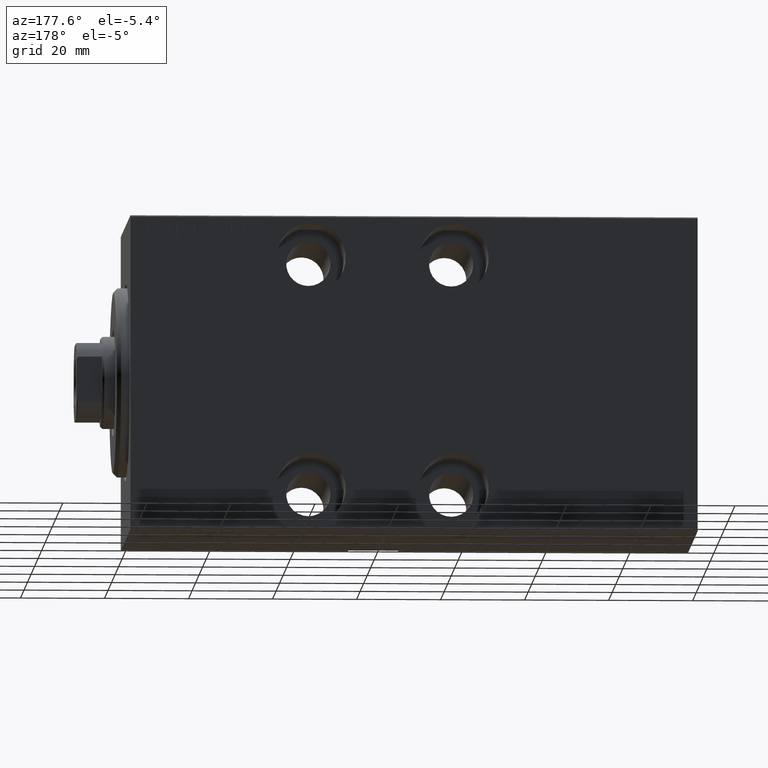
[diagram: clean part render]
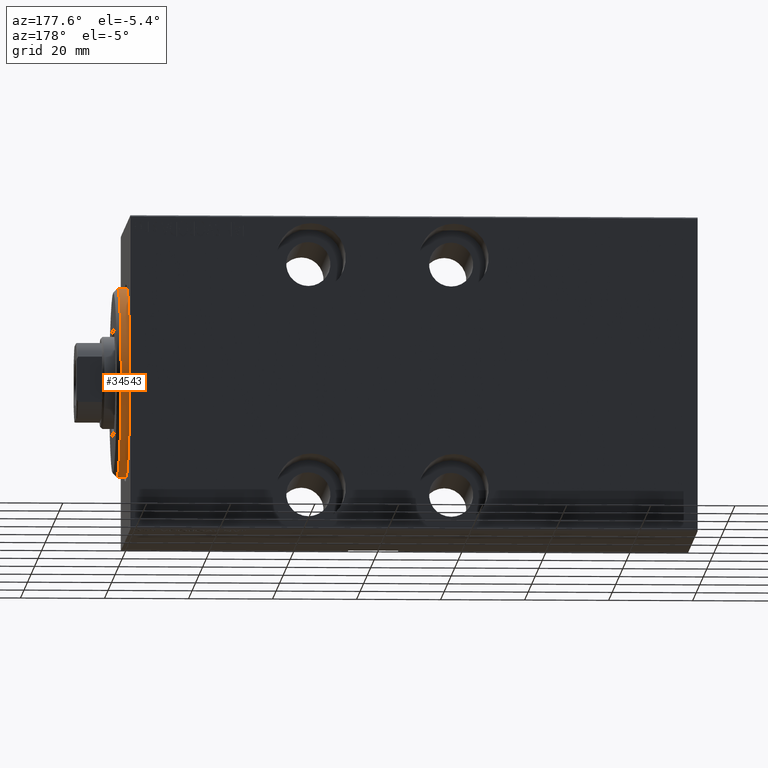
[diagram: same view with one face highlighted and labeled with its STEP entity id]
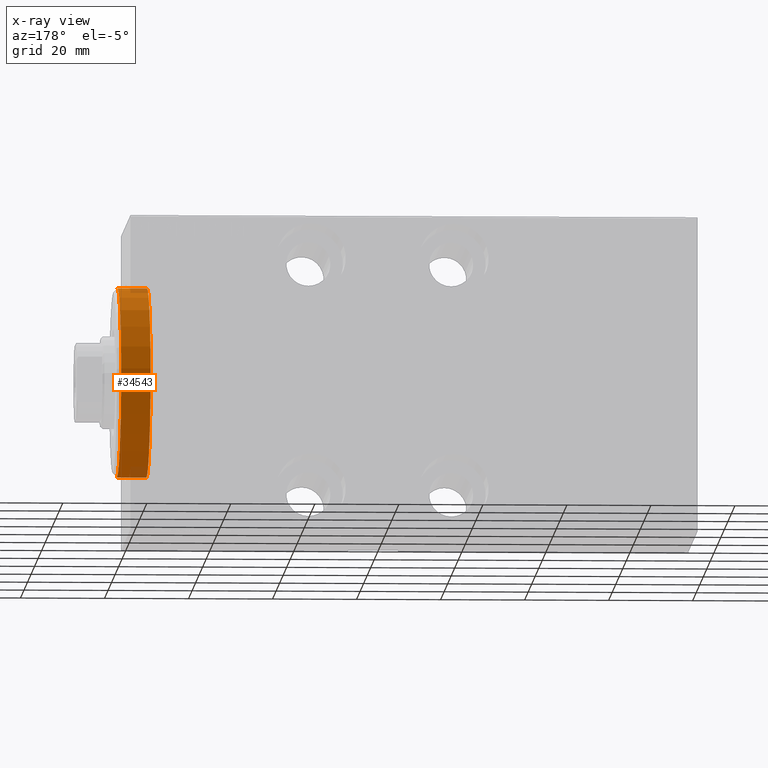
[diagram: x-ray of the same camera — body ghosted, the highlighted face saturated]
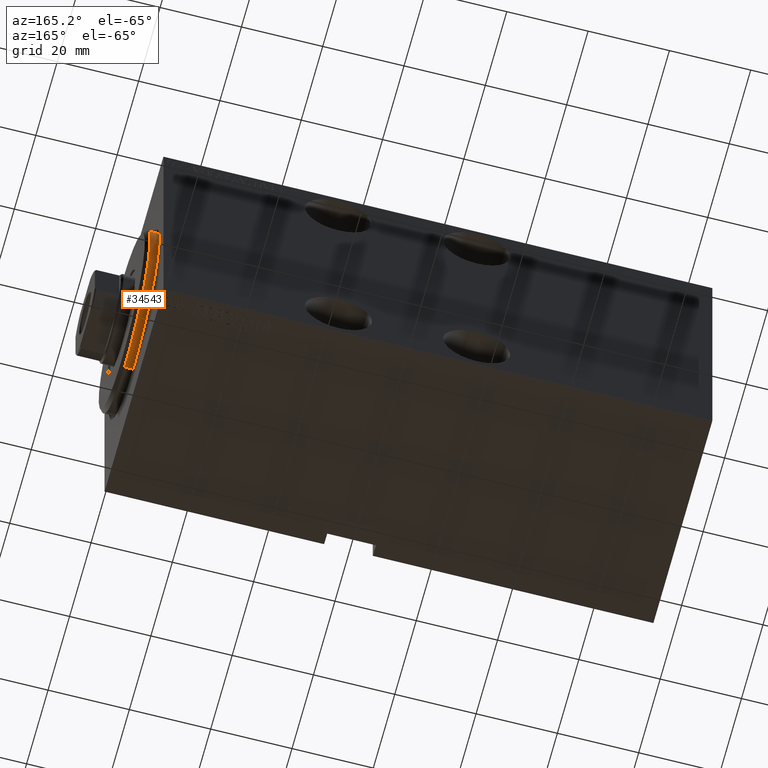
[diagram: same view with one face highlighted and labeled with its STEP entity id]
A machine part, auxiliary view. The second image highlights one B-rep face of the part: STEP entity #34543.
The next image is the same camera in x-ray: the body ghosted, the highlighted face saturated — about 5% of this face is hidden behind the body in this view.
A second angle (auxiliary view) of the same face is appended — the face is thin or edge-on in the first view.
In plain terms, the highlighted cylindrical surface (partial cylindrical patch) has radius 22.5 mm, axis along (-1, 0, 0).
Its self-contained STEP definition (entity closure, byte-faithful):
#526 = VECTOR ( 'NONE', #31885, 1000.000000000000000 ) ;
#2119 = CIRCLE ( 'NONE', #12021, 22.50000000000000355 ) ;
#2736 = DIRECTION ( 'NONE',  ( -1.000000000000000000, 0.000000000000000000, 0.000000000000000000 ) ) ;
#3776 = DIRECTION ( 'NONE',  ( 0.000000000000000000, 0.000000000000000000, 1.000000000000000000 ) ) ;
#4282 = CIRCLE ( 'NONE', #29016, 22.50000000000000355 ) ;
#4473 = EDGE_CURVE ( 'NONE', #32117, #21829, #27740, .T. ) ;
#4659 = FACE_OUTER_BOUND ( 'NONE', #30830, .T. ) ;
#5070 = VERTEX_POINT ( 'NONE', #17841 ) ;
#5300 = CARTESIAN_POINT ( 'NONE',  ( -5.000000000000000000, 0.000000000000000000, 22.50000000000000355 ) ) ;
#6946 = CARTESIAN_POINT ( 'NONE',  ( 3.000000000000000000, 2.755455298081545172E-15, -22.50000000000000355 ) ) ;
#7316 = CYLINDRICAL_SURFACE ( 'NONE', #42852, 22.50000000000000355 ) ;
#8061 = LINE ( 'NONE', #32403, #31512 ) ;
#9034 = DIRECTION ( 'NONE',  ( -1.000000000000000000, 0.000000000000000000, 0.000000000000000000 ) ) ;
#11880 = ORIENTED_EDGE ( 'NONE', *, *, #38989, .F. ) ;
#12021 = AXIS2_PLACEMENT_3D ( 'NONE', #40613, #9034, #26897 ) ;
#13368 = CARTESIAN_POINT ( 'NONE',  ( -5.000000000000000000, 0.000000000000000000, 0.000000000000000000 ) ) ;
#14234 = ORIENTED_EDGE ( 'NONE', *, *, #4473, .T. ) ;
#15102 = CARTESIAN_POINT ( 'NONE',  ( 1.999999999999999112, 2.755455298081545172E-15, -22.50000000000000355 ) ) ;
#15315 = EDGE_CURVE ( 'NONE', #5070, #32117, #2119, .T. ) ;
#16507 = VERTEX_POINT ( 'NONE', #5300 ) ;
#16918 = EDGE_CURVE ( 'NONE', #16507, #21829, #4282, .T. ) ;
#17841 = CARTESIAN_POINT ( 'NONE',  ( 1.999999999999999112, 0.000000000000000000, 22.50000000000000355 ) ) ;
#21829 = VERTEX_POINT ( 'NONE', #36915 ) ;
#22671 = ORIENTED_EDGE ( 'NONE', *, *, #15315, .T. ) ;
#23547 = DIRECTION ( 'NONE',  ( 0.000000000000000000, 0.000000000000000000, 1.000000000000000000 ) ) ;
#24587 = CARTESIAN_POINT ( 'NONE',  ( 3.000000000000000000, 0.000000000000000000, 0.000000000000000000 ) ) ;
#26897 = DIRECTION ( 'NONE',  ( 0.000000000000000000, 0.000000000000000000, -1.000000000000000000 ) ) ;
#27268 = ORIENTED_EDGE ( 'NONE', *, *, #16918, .F. ) ;
#27683 = DIRECTION ( 'NONE',  ( -1.000000000000000000, -0.000000000000000000, -0.000000000000000000 ) ) ;
#27740 = LINE ( 'NONE', #6946, #526 ) ;
#28207 = DIRECTION ( 'NONE',  ( -1.000000000000000000, -0.000000000000000000, -0.000000000000000000 ) ) ;
#29016 = AXIS2_PLACEMENT_3D ( 'NONE', #13368, #2736, #23547 ) ;
#30830 = EDGE_LOOP ( 'NONE', ( #22671, #14234, #27268, #11880 ) ) ;
#31512 = VECTOR ( 'NONE', #28207, 1000.000000000000000 ) ;
#31885 = DIRECTION ( 'NONE',  ( -1.000000000000000000, -0.000000000000000000, -0.000000000000000000 ) ) ;
#32117 = VERTEX_POINT ( 'NONE', #15102 ) ;
#32403 = CARTESIAN_POINT ( 'NONE',  ( 3.000000000000000000, 0.000000000000000000, 22.50000000000000355 ) ) ;
#34543 = ADVANCED_FACE ( 'NONE', ( #4659 ), #7316, .T. ) ;
#36915 = CARTESIAN_POINT ( 'NONE',  ( -5.000000000000000000, 2.755455298081545172E-15, -22.50000000000000355 ) ) ;
#38989 = EDGE_CURVE ( 'NONE', #5070, #16507, #8061, .T. ) ;
#40613 = CARTESIAN_POINT ( 'NONE',  ( 1.999999999999999112, 0.000000000000000000, 0.000000000000000000 ) ) ;
#42852 = AXIS2_PLACEMENT_3D ( 'NONE', #24587, #27683, #3776 ) ;